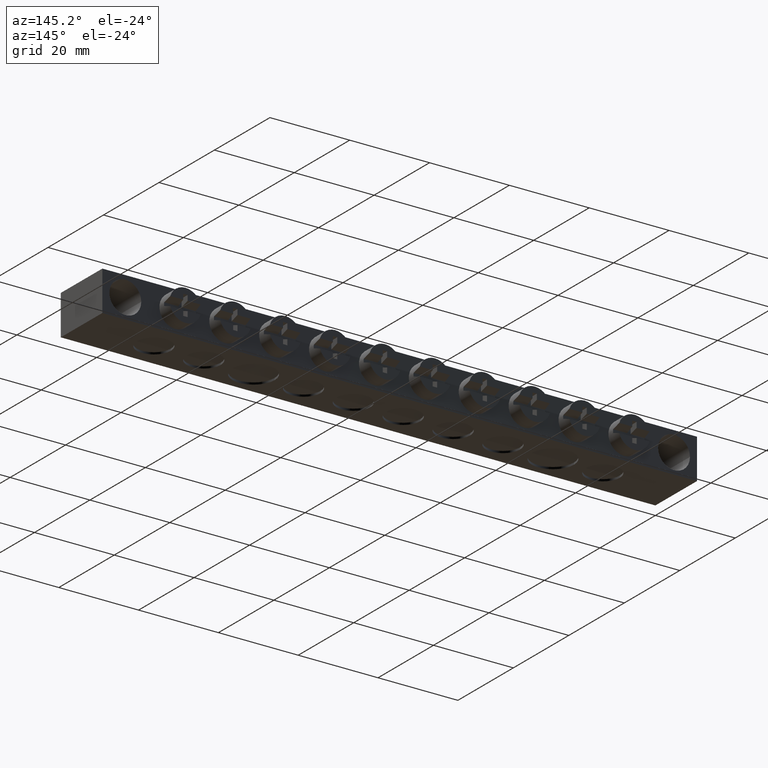
[diagram: clean part render]
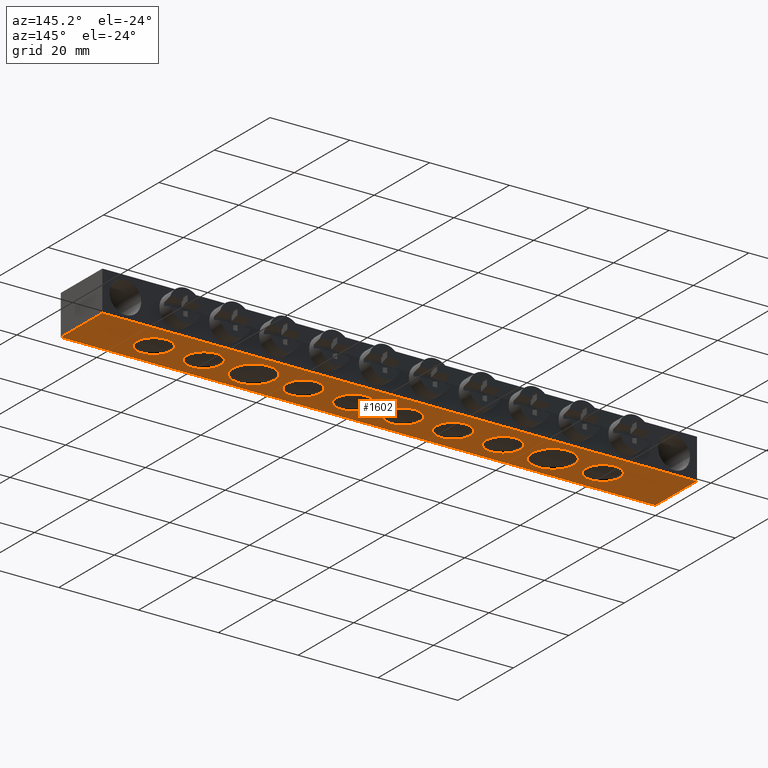
[diagram: same view with one face highlighted and labeled with its STEP entity id]
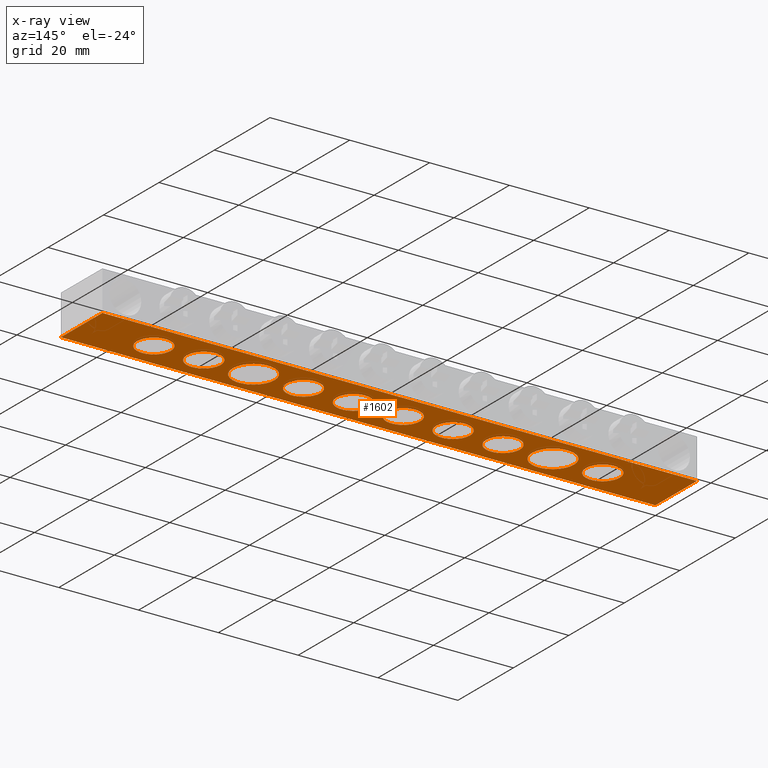
[diagram: x-ray of the same camera — body ghosted, the highlighted face saturated]
A machine part, auxiliary view. The second image highlights one B-rep face of the part: STEP entity #1602.
The next image is the same camera in x-ray: the body ghosted, the highlighted face saturated — about 0% of this face is hidden behind the body in this view.
In plain terms, the highlighted planar face has unit normal (0, 0, 1).
Its self-contained STEP definition (entity closure, byte-faithful):
#38 = ORIENTED_EDGE ( 'NONE', *, *, #4139, .F. ) ;
#46 = ORIENTED_EDGE ( 'NONE', *, *, #1559, .F. ) ;
#57 = ORIENTED_EDGE ( 'NONE', *, *, #3921, .F. ) ;
#63 = ORIENTED_EDGE ( 'NONE', *, *, #4142, .F. ) ;
#73 = ORIENTED_EDGE ( 'NONE', *, *, #4138, .F. ) ;
#79 = VERTEX_POINT ( 'NONE', #1167 ) ;
#80 = ORIENTED_EDGE ( 'NONE', *, *, #1556, .F. ) ;
#81 = ORIENTED_EDGE ( 'NONE', *, *, #4156, .F. ) ;
#82 = ORIENTED_EDGE ( 'NONE', *, *, #1524, .F. ) ;
#85 = ORIENTED_EDGE ( 'NONE', *, *, #3915, .T. ) ;
#94 = ORIENTED_EDGE ( 'NONE', *, *, #1519, .F. ) ;
#101 = VERTEX_POINT ( 'NONE', #1233 ) ;
#106 = VERTEX_POINT ( 'NONE', #1195 ) ;
#108 = VERTEX_POINT ( 'NONE', #1202 ) ;
#115 = VERTEX_POINT ( 'NONE', #1235 ) ;
#116 = VERTEX_POINT ( 'NONE', #1234 ) ;
#119 = VERTEX_POINT ( 'NONE', #1201 ) ;
#123 = VERTEX_POINT ( 'NONE', #1214 ) ;
#125 = VERTEX_POINT ( 'NONE', #1241 ) ;
#126 = VERTEX_POINT ( 'NONE', #1208 ) ;
#134 = VERTEX_POINT ( 'NONE', #1219 ) ;
#142 = VERTEX_POINT ( 'NONE', #1188 ) ;
#168 = VERTEX_POINT ( 'NONE', #1308 ) ;
#171 = VERTEX_POINT ( 'NONE', #1247 ) ;
#173 = VERTEX_POINT ( 'NONE', #1248 ) ;
#195 = VERTEX_POINT ( 'NONE', #1280 ) ;
#204 = VERTEX_POINT ( 'NONE', #1262 ) ;
#205 = VERTEX_POINT ( 'NONE', #1292 ) ;
#208 = VERTEX_POINT ( 'NONE', #1270 ) ;
#209 = VERTEX_POINT ( 'NONE', #1293 ) ;
#219 = VERTEX_POINT ( 'NONE', #1032 ) ;
#881 = EDGE_LOOP ( 'NONE', ( #1310, #1327, #85, #1318 ) ) ;
#888 = EDGE_LOOP ( 'NONE', ( #94, #57 ) ) ;
#932 = EDGE_LOOP ( 'NONE', ( #6409, #6412 ) ) ;
#935 = EDGE_LOOP ( 'NONE', ( #6410, #6380 ) ) ;
#941 = EDGE_LOOP ( 'NONE', ( #82, #63 ) ) ;
#942 = EDGE_LOOP ( 'NONE', ( #6414, #6433 ) ) ;
#966 = EDGE_LOOP ( 'NONE', ( #6440, #6404 ) ) ;
#970 = EDGE_LOOP ( 'NONE', ( #1314, #38 ) ) ;
#971 = EDGE_LOOP ( 'NONE', ( #6392, #6436 ) ) ;
#986 = EDGE_LOOP ( 'NONE', ( #80, #73 ) ) ;
#987 = EDGE_LOOP ( 'NONE', ( #46, #81 ) ) ;
#1032 = CARTESIAN_POINT ( 'NONE',  ( 13.99999999999999800, 7.299999999999999800, -10.00000000000000200 ) ) ;
#1167 = CARTESIAN_POINT ( 'NONE',  ( 0.0000000000000000000, 15.00000000000000000, -10.00000000000000000 ) ) ;
#1188 = CARTESIAN_POINT ( 'NONE',  ( 126.5000000000000000, 7.299999999999999800, -10.00000000000000200 ) ) ;
#1195 = CARTESIAN_POINT ( 'NONE',  ( 135.0000000000000000, 7.299999999999998900, -10.00000000000000200 ) ) ;
#1201 = CARTESIAN_POINT ( 'NONE',  ( 89.00000000000000000, 7.299999999999972300, -10.00000000000000200 ) ) ;
#1202 = CARTESIAN_POINT ( 'NONE',  ( 39.00000000000001400, 7.299999999999710300, -10.00000000000000200 ) ) ;
#1208 = CARTESIAN_POINT ( 'NONE',  ( 114.0000000000000100, 7.300000000000000700, -10.00000000000000200 ) ) ;
#1214 = CARTESIAN_POINT ( 'NONE',  ( 22.50000000000000000, 7.299999999999998900, -10.00000000000000200 ) ) ;
#1219 = CARTESIAN_POINT ( 'NONE',  ( 47.50000000000002100, 7.299999999999709400, -10.00000000000000200 ) ) ;
#1233 = CARTESIAN_POINT ( 'NONE',  ( 97.50000000000000000, 7.299999999999971400, -10.00000000000000200 ) ) ;
#1234 = CARTESIAN_POINT ( 'NONE',  ( 100.5000000000000000, 7.300000000000003400, -10.00000000000000200 ) ) ;
#1235 = CARTESIAN_POINT ( 'NONE',  ( 122.5000000000000300, 7.299999999999999800, -10.00000000000000200 ) ) ;
#1241 = CARTESIAN_POINT ( 'NONE',  ( 36.00000000000000000, 7.299999999999998900, -10.00000000000000200 ) ) ;
#1247 = CARTESIAN_POINT ( 'NONE',  ( 60.00000000000001400, 7.299999999999797300, -10.00000000000000200 ) ) ;
#1248 = CARTESIAN_POINT ( 'NONE',  ( 64.00000000000000000, 7.299999999999884400, -10.00000000000000200 ) ) ;
#1262 = CARTESIAN_POINT ( 'NONE',  ( 85.00000000000000000, 7.299999999999971400, -10.00000000000000200 ) ) ;
#1270 = CARTESIAN_POINT ( 'NONE',  ( 25.50000000000000400, 7.299999999999999800, -10.00000000000000200 ) ) ;
#1280 = CARTESIAN_POINT ( 'NONE',  ( 76.50000000000000000, 7.299999999999972300, -10.00000000000000200 ) ) ;
#1292 = CARTESIAN_POINT ( 'NONE',  ( 51.50000000000000700, 7.299999999999798200, -10.00000000000000200 ) ) ;
#1293 = CARTESIAN_POINT ( 'NONE',  ( 111.0000000000000100, 7.300000000000002500, -10.00000000000000200 ) ) ;
#1308 = CARTESIAN_POINT ( 'NONE',  ( 72.50000000000001400, 7.299999999999883500, -10.00000000000000200 ) ) ;
#1310 = ORIENTED_EDGE ( 'NONE', *, *, #3897, .T. ) ;
#1314 = ORIENTED_EDGE ( 'NONE', *, *, #1500, .F. ) ;
#1318 = ORIENTED_EDGE ( 'NONE', *, *, #3900, .F. ) ;
#1327 = ORIENTED_EDGE ( 'NONE', *, *, #3912, .T. ) ;
#1328 = AXIS2_PLACEMENT_3D ( 'NONE', #4895, #4861, #4873 ) ;
#1330 = AXIS2_PLACEMENT_3D ( 'NONE', #4778, #4779, #4797 ) ;
#1341 = AXIS2_PLACEMENT_3D ( 'NONE', #4828, #4838, #4829 ) ;
#1349 = AXIS2_PLACEMENT_3D ( 'NONE', #4789, #4808, #4813 ) ;
#1362 = CIRCLE ( 'NONE', #1330, 5.250000000000004400 ) ;
#1366 = CIRCLE ( 'NONE', #1349, 4.250000000000003600 ) ;
#1378 = CIRCLE ( 'NONE', #1328, 4.250000000000003600 ) ;
#1382 = CIRCLE ( 'NONE', #1341, 4.250000000000003600 ) ;
#1500 = EDGE_CURVE ( 'NONE', #123, #219, #2913, .T. ) ;
#1509 = EDGE_CURVE ( 'NONE', #134, #108, #2942, .T. ) ;
#1519 = EDGE_CURVE ( 'NONE', #125, #208, #2991, .T. ) ;
#1524 = EDGE_CURVE ( 'NONE', #106, #142, #2978, .T. ) ;
#1526 = EDGE_CURVE ( 'NONE', #171, #205, #2989, .T. ) ;
#1528 = EDGE_CURVE ( 'NONE', #101, #119, #3017, .T. ) ;
#1531 = EDGE_CURVE ( 'NONE', #204, #195, #2962, .T. ) ;
#1556 = EDGE_CURVE ( 'NONE', #115, #126, #3015, .T. ) ;
#1559 = EDGE_CURVE ( 'NONE', #209, #116, #3061, .T. ) ;
#1562 = EDGE_CURVE ( 'NONE', #168, #173, #3082, .T. ) ;
#1602 = ADVANCED_FACE ( 'NONE', ( #5631, #5612, #5676, #5643, #5630, #5611, #5683, #5677, #5654, #5591, #5666 ), #5686, .F. ) ;
#2025 = CARTESIAN_POINT ( 'NONE',  ( 0.0000000000000000000, 15.00000000000000000, -10.00000000000000000 ) ) ;
#2032 = DIRECTION ( 'NONE',  ( -0.0000000000000000000, -0.0000000000000000000, -1.000000000000000000 ) ) ;
#2033 = DIRECTION ( 'NONE',  ( 1.000000000000000000, 0.0000000000000000000, 0.0000000000000000000 ) ) ;
#2035 = CARTESIAN_POINT ( 'NONE',  ( 55.75000000000000700, 7.299999999999797300, -10.00000000000000200 ) ) ;
#2039 = LINE ( 'NONE', #2025, #2580 ) ;
#2051 = CARTESIAN_POINT ( 'NONE',  ( 0.0000000000000000000, 0.0000000000000000000, -10.00000000000000000 ) ) ;
#2055 = DIRECTION ( 'NONE',  ( 0.0000000000000000000, 1.000000000000000000, 0.0000000000000000000 ) ) ;
#2058 = LINE ( 'NONE', #2051, #2551 ) ;
#2059 = DIRECTION ( 'NONE',  ( 1.000000000000000000, 0.0000000000000000000, 0.0000000000000000000 ) ) ;
#2073 = DIRECTION ( 'NONE',  ( -0.0000000000000000000, -1.000000000000000000, 0.0000000000000000000 ) ) ;
#2078 = CARTESIAN_POINT ( 'NONE',  ( 0.0000000000000000000, 15.00000000000000000, -10.00000000000000000 ) ) ;
#2088 = CARTESIAN_POINT ( 'NONE',  ( 149.0000000000000000, 15.00000000000000000, -10.00000000000000000 ) ) ;
#2099 = LINE ( 'NONE', #2078, #2600 ) ;
#2104 = DIRECTION ( 'NONE',  ( 1.000000000000000000, 0.0000000000000000000, 0.0000000000000000000 ) ) ;
#2113 = LINE ( 'NONE', #2088, #2565 ) ;
#2505 = CIRCLE ( 'NONE', #2645, 4.250000000000003600 ) ;
#2550 = AXIS2_PLACEMENT_3D ( 'NONE', #2035, #2032, #2033 ) ;
#2551 = VECTOR ( 'NONE', #2059, 1000.000000000000000 ) ;
#2556 = AXIS2_PLACEMENT_3D ( 'NONE', #3532, #3534, #3535 ) ;
#2562 = AXIS2_PLACEMENT_3D ( 'NONE', #3529, #3531, #3293 ) ;
#2565 = VECTOR ( 'NONE', #2073, 1000.000000000000000 ) ;
#2580 = VECTOR ( 'NONE', #2055, 1000.000000000000000 ) ;
#2583 = CIRCLE ( 'NONE', #2550, 4.250000000000003600 ) ;
#2594 = CIRCLE ( 'NONE', #2562, 4.250000000000003600 ) ;
#2600 = VECTOR ( 'NONE', #2104, 1000.000000000000000 ) ;
#2610 = CIRCLE ( 'NONE', #2556, 5.249999999999997300 ) ;
#2645 = AXIS2_PLACEMENT_3D ( 'NONE', #4745, #4758, #4767 ) ;
#2776 = CIRCLE ( 'NONE', #2820, 4.250000000000003600 ) ;
#2820 = AXIS2_PLACEMENT_3D ( 'NONE', #4762, #4770, #4777 ) ;
#2859 = CIRCLE ( 'NONE', #2878, 4.250000000000000000 ) ;
#2878 = AXIS2_PLACEMENT_3D ( 'NONE', #4744, #4772, #4763 ) ;
#2913 = CIRCLE ( 'NONE', #2930, 4.250000000000000000 ) ;
#2930 = AXIS2_PLACEMENT_3D ( 'NONE', #5245, #5259, #5233 ) ;
#2942 = CIRCLE ( 'NONE', #2952, 4.250000000000003600 ) ;
#2952 = AXIS2_PLACEMENT_3D ( 'NONE', #5286, #5304, #5297 ) ;
#2958 = AXIS2_PLACEMENT_3D ( 'NONE', #5345, #5323, #5347 ) ;
#2962 = CIRCLE ( 'NONE', #2992, 4.250000000000003600 ) ;
#2964 = AXIS2_PLACEMENT_3D ( 'NONE', #5261, #5301, #5263 ) ;
#2978 = CIRCLE ( 'NONE', #2958, 4.250000000000003600 ) ;
#2988 = AXIS2_PLACEMENT_3D ( 'NONE', #5348, #5311, #5338 ) ;
#2989 = CIRCLE ( 'NONE', #2988, 4.250000000000003600 ) ;
#2991 = CIRCLE ( 'NONE', #2964, 5.249999999999997300 ) ;
#2992 = AXIS2_PLACEMENT_3D ( 'NONE', #5333, #5324, #5326 ) ;
#3005 = AXIS2_PLACEMENT_3D ( 'NONE', #5431, #5410, #5395 ) ;
#3011 = AXIS2_PLACEMENT_3D ( 'NONE', #5306, #5309, #5349 ) ;
#3015 = CIRCLE ( 'NONE', #3005, 4.250000000000003600 ) ;
#3017 = CIRCLE ( 'NONE', #3011, 4.250000000000003600 ) ;
#3032 = AXIS2_PLACEMENT_3D ( 'NONE', #5416, #5424, #5398 ) ;
#3038 = AXIS2_PLACEMENT_3D ( 'NONE', #5662, #5636, #5684 ) ;
#3061 = CIRCLE ( 'NONE', #3071, 5.250000000000004400 ) ;
#3071 = AXIS2_PLACEMENT_3D ( 'NONE', #5415, #5421, #5435 ) ;
#3082 = CIRCLE ( 'NONE', #3032, 4.250000000000003600 ) ;
#3293 = DIRECTION ( 'NONE',  ( 1.000000000000000000, 0.0000000000000000000, 0.0000000000000000000 ) ) ;
#3529 = CARTESIAN_POINT ( 'NONE',  ( 80.75000000000000000, 7.299999999999971400, -10.00000000000000200 ) ) ;
#3531 = DIRECTION ( 'NONE',  ( -0.0000000000000000000, -0.0000000000000000000, -1.000000000000000000 ) ) ;
#3532 = CARTESIAN_POINT ( 'NONE',  ( 30.75000000000000000, 7.299999999999998900, -10.00000000000000200 ) ) ;
#3534 = DIRECTION ( 'NONE',  ( -0.0000000000000000000, -0.0000000000000000000, -1.000000000000000000 ) ) ;
#3535 = DIRECTION ( 'NONE',  ( 1.000000000000000000, 0.0000000000000000000, 0.0000000000000000000 ) ) ;
#3895 = EDGE_CURVE ( 'NONE', #205, #171, #2583, .T. ) ;
#3897 = EDGE_CURVE ( 'NONE', #6386, #79, #2039, .T. ) ;
#3900 = EDGE_CURVE ( 'NONE', #6386, #6870, #2058, .T. ) ;
#3912 = EDGE_CURVE ( 'NONE', #79, #6331, #2099, .T. ) ;
#3915 = EDGE_CURVE ( 'NONE', #6331, #6870, #2113, .T. ) ;
#3921 = EDGE_CURVE ( 'NONE', #208, #125, #2610, .T. ) ;
#3925 = EDGE_CURVE ( 'NONE', #195, #204, #2594, .T. ) ;
#4138 = EDGE_CURVE ( 'NONE', #126, #115, #2776, .T. ) ;
#4139 = EDGE_CURVE ( 'NONE', #219, #123, #2859, .T. ) ;
#4142 = EDGE_CURVE ( 'NONE', #142, #106, #2505, .T. ) ;
#4155 = EDGE_CURVE ( 'NONE', #119, #101, #1366, .T. ) ;
#4156 = EDGE_CURVE ( 'NONE', #116, #209, #1362, .T. ) ;
#4170 = EDGE_CURVE ( 'NONE', #173, #168, #1382, .T. ) ;
#4175 = EDGE_CURVE ( 'NONE', #108, #134, #1378, .T. ) ;
#4225 = CARTESIAN_POINT ( 'NONE',  ( 149.0000000000000000, 0.0000000000000000000, -10.00000000000000000 ) ) ;
#4744 = CARTESIAN_POINT ( 'NONE',  ( 18.25000000000000000, 7.299999999999998900, -10.00000000000000200 ) ) ;
#4745 = CARTESIAN_POINT ( 'NONE',  ( 130.7500000000000000, 7.299999999999998900, -10.00000000000000200 ) ) ;
#4758 = DIRECTION ( 'NONE',  ( -0.0000000000000000000, -0.0000000000000000000, -1.000000000000000000 ) ) ;
#4762 = CARTESIAN_POINT ( 'NONE',  ( 118.2500000000000300, 7.299999999999999800, -10.00000000000000200 ) ) ;
#4763 = DIRECTION ( 'NONE',  ( 1.000000000000000000, 0.0000000000000000000, 0.0000000000000000000 ) ) ;
#4767 = DIRECTION ( 'NONE',  ( 1.000000000000000000, 0.0000000000000000000, 0.0000000000000000000 ) ) ;
#4770 = DIRECTION ( 'NONE',  ( -0.0000000000000000000, -0.0000000000000000000, -1.000000000000000000 ) ) ;
#4772 = DIRECTION ( 'NONE',  ( -0.0000000000000000000, -0.0000000000000000000, -1.000000000000000000 ) ) ;
#4777 = DIRECTION ( 'NONE',  ( 1.000000000000000000, 0.0000000000000000000, 0.0000000000000000000 ) ) ;
#4778 = CARTESIAN_POINT ( 'NONE',  ( 105.7500000000000100, 7.300000000000002500, -10.00000000000000200 ) ) ;
#4779 = DIRECTION ( 'NONE',  ( -0.0000000000000000000, -0.0000000000000000000, -1.000000000000000000 ) ) ;
#4789 = CARTESIAN_POINT ( 'NONE',  ( 93.25000000000000000, 7.299999999999971400, -10.00000000000000200 ) ) ;
#4797 = DIRECTION ( 'NONE',  ( 1.000000000000000000, 0.0000000000000000000, 0.0000000000000000000 ) ) ;
#4808 = DIRECTION ( 'NONE',  ( -0.0000000000000000000, -0.0000000000000000000, -1.000000000000000000 ) ) ;
#4813 = DIRECTION ( 'NONE',  ( 1.000000000000000000, 0.0000000000000000000, 0.0000000000000000000 ) ) ;
#4828 = CARTESIAN_POINT ( 'NONE',  ( 68.25000000000000000, 7.299999999999883500, -10.00000000000000200 ) ) ;
#4829 = DIRECTION ( 'NONE',  ( 1.000000000000000000, 0.0000000000000000000, 0.0000000000000000000 ) ) ;
#4838 = DIRECTION ( 'NONE',  ( -0.0000000000000000000, -0.0000000000000000000, -1.000000000000000000 ) ) ;
#4861 = DIRECTION ( 'NONE',  ( -0.0000000000000000000, -0.0000000000000000000, -1.000000000000000000 ) ) ;
#4873 = DIRECTION ( 'NONE',  ( 1.000000000000000000, 0.0000000000000000000, 0.0000000000000000000 ) ) ;
#4895 = CARTESIAN_POINT ( 'NONE',  ( 43.25000000000001400, 7.299999999999709400, -10.00000000000000200 ) ) ;
#4952 = CARTESIAN_POINT ( 'NONE',  ( 0.0000000000000000000, 0.0000000000000000000, -10.00000000000000000 ) ) ;
#4997 = CARTESIAN_POINT ( 'NONE',  ( 149.0000000000000000, 15.00000000000000000, -10.00000000000000000 ) ) ;
#5233 = DIRECTION ( 'NONE',  ( 1.000000000000000000, 0.0000000000000000000, 0.0000000000000000000 ) ) ;
#5245 = CARTESIAN_POINT ( 'NONE',  ( 18.25000000000000000, 7.299999999999998900, -10.00000000000000200 ) ) ;
#5259 = DIRECTION ( 'NONE',  ( -0.0000000000000000000, -0.0000000000000000000, -1.000000000000000000 ) ) ;
#5261 = CARTESIAN_POINT ( 'NONE',  ( 30.75000000000000000, 7.299999999999998900, -10.00000000000000200 ) ) ;
#5263 = DIRECTION ( 'NONE',  ( 1.000000000000000000, 0.0000000000000000000, 0.0000000000000000000 ) ) ;
#5286 = CARTESIAN_POINT ( 'NONE',  ( 43.25000000000001400, 7.299999999999709400, -10.00000000000000200 ) ) ;
#5297 = DIRECTION ( 'NONE',  ( 1.000000000000000000, 0.0000000000000000000, 0.0000000000000000000 ) ) ;
#5301 = DIRECTION ( 'NONE',  ( -0.0000000000000000000, -0.0000000000000000000, -1.000000000000000000 ) ) ;
#5304 = DIRECTION ( 'NONE',  ( -0.0000000000000000000, -0.0000000000000000000, -1.000000000000000000 ) ) ;
#5306 = CARTESIAN_POINT ( 'NONE',  ( 93.25000000000000000, 7.299999999999971400, -10.00000000000000200 ) ) ;
#5309 = DIRECTION ( 'NONE',  ( -0.0000000000000000000, -0.0000000000000000000, -1.000000000000000000 ) ) ;
#5311 = DIRECTION ( 'NONE',  ( -0.0000000000000000000, -0.0000000000000000000, -1.000000000000000000 ) ) ;
#5323 = DIRECTION ( 'NONE',  ( -0.0000000000000000000, -0.0000000000000000000, -1.000000000000000000 ) ) ;
#5324 = DIRECTION ( 'NONE',  ( -0.0000000000000000000, -0.0000000000000000000, -1.000000000000000000 ) ) ;
#5326 = DIRECTION ( 'NONE',  ( 1.000000000000000000, 0.0000000000000000000, 0.0000000000000000000 ) ) ;
#5333 = CARTESIAN_POINT ( 'NONE',  ( 80.75000000000000000, 7.299999999999971400, -10.00000000000000200 ) ) ;
#5338 = DIRECTION ( 'NONE',  ( 1.000000000000000000, 0.0000000000000000000, 0.0000000000000000000 ) ) ;
#5345 = CARTESIAN_POINT ( 'NONE',  ( 130.7500000000000000, 7.299999999999998900, -10.00000000000000200 ) ) ;
#5347 = DIRECTION ( 'NONE',  ( 1.000000000000000000, 0.0000000000000000000, 0.0000000000000000000 ) ) ;
#5348 = CARTESIAN_POINT ( 'NONE',  ( 55.75000000000000700, 7.299999999999797300, -10.00000000000000200 ) ) ;
#5349 = DIRECTION ( 'NONE',  ( 1.000000000000000000, 0.0000000000000000000, 0.0000000000000000000 ) ) ;
#5395 = DIRECTION ( 'NONE',  ( 1.000000000000000000, 0.0000000000000000000, 0.0000000000000000000 ) ) ;
#5398 = DIRECTION ( 'NONE',  ( 1.000000000000000000, 0.0000000000000000000, 0.0000000000000000000 ) ) ;
#5410 = DIRECTION ( 'NONE',  ( -0.0000000000000000000, -0.0000000000000000000, -1.000000000000000000 ) ) ;
#5415 = CARTESIAN_POINT ( 'NONE',  ( 105.7500000000000100, 7.300000000000002500, -10.00000000000000200 ) ) ;
#5416 = CARTESIAN_POINT ( 'NONE',  ( 68.25000000000000000, 7.299999999999883500, -10.00000000000000200 ) ) ;
#5421 = DIRECTION ( 'NONE',  ( -0.0000000000000000000, -0.0000000000000000000, -1.000000000000000000 ) ) ;
#5424 = DIRECTION ( 'NONE',  ( -0.0000000000000000000, -0.0000000000000000000, -1.000000000000000000 ) ) ;
#5431 = CARTESIAN_POINT ( 'NONE',  ( 118.2500000000000300, 7.299999999999999800, -10.00000000000000200 ) ) ;
#5435 = DIRECTION ( 'NONE',  ( 1.000000000000000000, 0.0000000000000000000, 0.0000000000000000000 ) ) ;
#5591 = FACE_BOUND ( 'NONE', #942, .T. ) ;
#5611 = FACE_BOUND ( 'NONE', #987, .T. ) ;
#5612 = FACE_BOUND ( 'NONE', #970, .T. ) ;
#5630 = FACE_BOUND ( 'NONE', #986, .T. ) ;
#5631 = FACE_OUTER_BOUND ( 'NONE', #881, .T. ) ;
#5636 = DIRECTION ( 'NONE',  ( 0.0000000000000000000, 0.0000000000000000000, 1.000000000000000000 ) ) ;
#5643 = FACE_BOUND ( 'NONE', #941, .T. ) ;
#5654 = FACE_BOUND ( 'NONE', #935, .T. ) ;
#5662 = CARTESIAN_POINT ( 'NONE',  ( 0.0000000000000000000, 15.00000000000000000, -10.00000000000000000 ) ) ;
#5666 = FACE_BOUND ( 'NONE', #971, .T. ) ;
#5676 = FACE_BOUND ( 'NONE', #888, .T. ) ;
#5677 = FACE_BOUND ( 'NONE', #966, .T. ) ;
#5683 = FACE_BOUND ( 'NONE', #932, .T. ) ;
#5684 = DIRECTION ( 'NONE',  ( 1.000000000000000000, 0.0000000000000000000, -0.0000000000000000000 ) ) ;
#5686 = PLANE ( 'NONE',  #3038 ) ;
#6331 = VERTEX_POINT ( 'NONE', #4997 ) ;
#6380 = ORIENTED_EDGE ( 'NONE', *, *, #4170, .F. ) ;
#6386 = VERTEX_POINT ( 'NONE', #4952 ) ;
#6392 = ORIENTED_EDGE ( 'NONE', *, *, #1509, .F. ) ;
#6404 = ORIENTED_EDGE ( 'NONE', *, *, #4155, .F. ) ;
#6409 = ORIENTED_EDGE ( 'NONE', *, *, #1531, .F. ) ;
#6410 = ORIENTED_EDGE ( 'NONE', *, *, #1562, .F. ) ;
#6412 = ORIENTED_EDGE ( 'NONE', *, *, #3925, .F. ) ;
#6414 = ORIENTED_EDGE ( 'NONE', *, *, #1526, .F. ) ;
#6433 = ORIENTED_EDGE ( 'NONE', *, *, #3895, .F. ) ;
#6436 = ORIENTED_EDGE ( 'NONE', *, *, #4175, .F. ) ;
#6440 = ORIENTED_EDGE ( 'NONE', *, *, #1528, .F. ) ;
#6870 = VERTEX_POINT ( 'NONE', #4225 ) ;